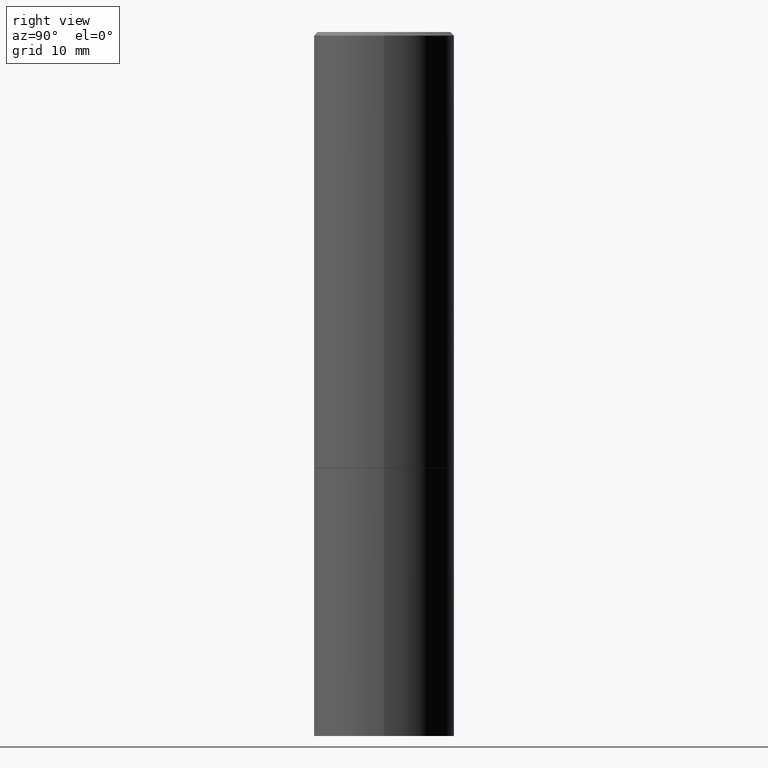
[diagram: clean part render]
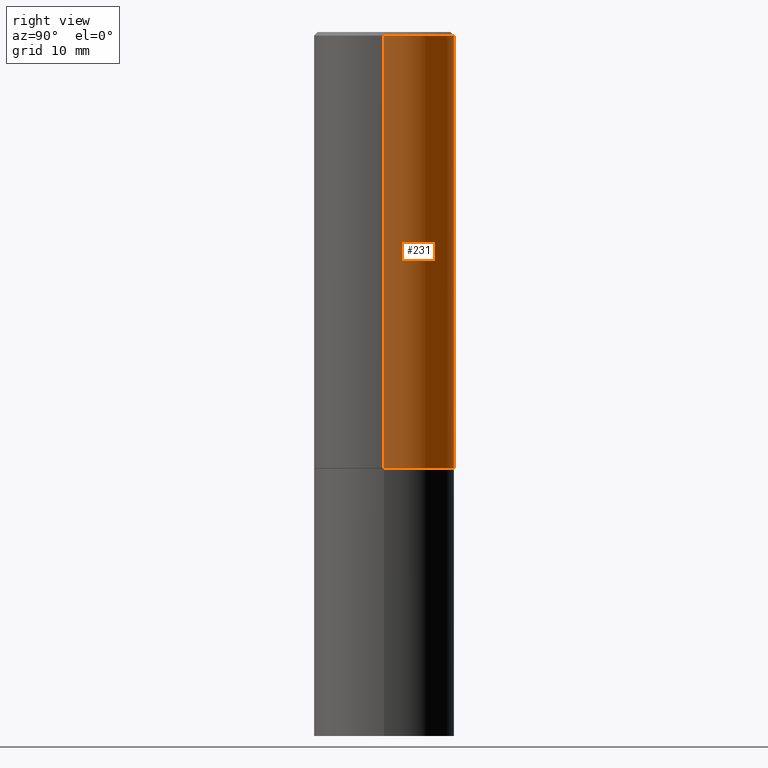
[diagram: same view with one face highlighted and labeled with its STEP entity id]
A machine part, right view. The second image highlights one B-rep face of the part: STEP entity #231.
In plain terms, the highlighted cylindrical surface (partial cylindrical patch) has radius 10 mm, axis along (-0, 0, 1).
Its self-contained STEP definition (entity closure, byte-faithful):
#10 = DIRECTION ( 'NONE',  ( 1.000000000000000000, -6.982962677686266711E-15, 4.876176775795935793E-29 ) ) ;
#12 = EDGE_CURVE ( 'NONE', #244, #27, #299, .T. ) ;
#27 = VERTEX_POINT ( 'NONE', #58 ) ;
#35 = VECTOR ( 'NONE', #214, 39.37007874015748143 ) ;
#58 = CARTESIAN_POINT ( 'NONE',  ( -0.3936999999999997724, 2.679362779428217946E-15, -0.02000000000000009062 ) ) ;
#98 = FACE_OUTER_BOUND ( 'NONE', #296, .T. ) ;
#106 = CARTESIAN_POINT ( 'NONE',  ( 0.3936999999999998834, -2.749192406205082428E-15, 1.919750796630859331E-29 ) ) ;
#108 = DIRECTION ( 'NONE',  ( 1.000000000000000000, -6.982962677686266711E-15, 0.000000000000000000 ) ) ;
#111 = EDGE_CURVE ( 'NONE', #262, #278, #209, .T. ) ;
#134 = DIRECTION ( 'NONE',  ( -2.445468806185136877E-29, 3.491481338843145188E-15, 1.000000000000000000 ) ) ;
#155 = CARTESIAN_POINT ( 'NONE',  ( 0.000000000000000000, 0.000000000000000000, 0.000000000000000000 ) ) ;
#164 = ORIENTED_EDGE ( 'NONE', *, *, #297, .F. ) ;
#169 = CARTESIAN_POINT ( 'NONE',  ( 0.3936999999999997724, -2.770807688499513762E-15, -0.02000000000000009062 ) ) ;
#194 = CARTESIAN_POINT ( 'NONE',  ( 4.890937612370295054E-31, -6.982962677686322424E-17, -0.02000000000000009062 ) ) ;
#203 = CYLINDRICAL_SURFACE ( 'NONE', #219, 0.3936999999999998834 ) ;
#209 = LINE ( 'NONE', #106, #35 ) ;
#214 = DIRECTION ( 'NONE',  ( -2.445468806185136877E-29, 3.491481338843145188E-15, 1.000000000000000000 ) ) ;
#218 = ORIENTED_EDGE ( 'NONE', *, *, #12, .T. ) ;
#219 = AXIS2_PLACEMENT_3D ( 'NONE', #155, #238, #10 ) ;
#220 = DIRECTION ( 'NONE',  ( -2.445468806185136597E-29, 3.491481338843145583E-15, 1.000000000000000000 ) ) ;
#231 = ADVANCED_FACE ( 'NONE', ( #98 ), #203, .T. ) ;
#238 = DIRECTION ( 'NONE',  ( -2.445468806185136597E-29, 3.491481338843145583E-15, 1.000000000000000000 ) ) ;
#244 = VERTEX_POINT ( 'NONE', #320 ) ;
#248 = VECTOR ( 'NONE', #134, 39.37007874015748143 ) ;
#249 = AXIS2_PLACEMENT_3D ( 'NONE', #194, #220, #108 ) ;
#259 = CIRCLE ( 'NONE', #249, 0.3936999999999997724 ) ;
#262 = VERTEX_POINT ( 'NONE', #264 ) ;
#264 = CARTESIAN_POINT ( 'NONE',  ( 0.3937000000000000499, -1.126805772484847318E-14, -2.439900000000000180 ) ) ;
#278 = VERTEX_POINT ( 'NONE', #169 ) ;
#296 = EDGE_LOOP ( 'NONE', ( #326, #218, #164, #360 ) ) ;
#297 = EDGE_CURVE ( 'NONE', #278, #27, #259, .T. ) ;
#299 = LINE ( 'NONE', #300, #248 ) ;
#300 = CARTESIAN_POINT ( 'NONE',  ( -0.3936999999999998834, 2.797406750687513603E-15, -1.936584745033355895E-29 ) ) ;
#305 = CARTESIAN_POINT ( 'NONE',  ( 5.966699340211115678E-29, -8.518865318643391536E-15, -2.439900000000000180 ) ) ;
#307 = DIRECTION ( 'NONE',  ( -2.445468806185136597E-29, 3.491481338843145583E-15, 1.000000000000000000 ) ) ;
#308 = DIRECTION ( 'NONE',  ( 1.000000000000000000, -6.982962677686265133E-15, 0.000000000000000000 ) ) ;
#309 = AXIS2_PLACEMENT_3D ( 'NONE', #305, #307, #308 ) ;
#320 = CARTESIAN_POINT ( 'NONE',  ( -0.3937000000000001054, -1.496940722022610659E-15, -2.439900000000000180 ) ) ;
#326 = ORIENTED_EDGE ( 'NONE', *, *, #341, .T. ) ;
#341 = EDGE_CURVE ( 'NONE', #262, #244, #348, .T. ) ;
#348 = CIRCLE ( 'NONE', #309, 0.3937000000000000499 ) ;
#360 = ORIENTED_EDGE ( 'NONE', *, *, #111, .F. ) ;